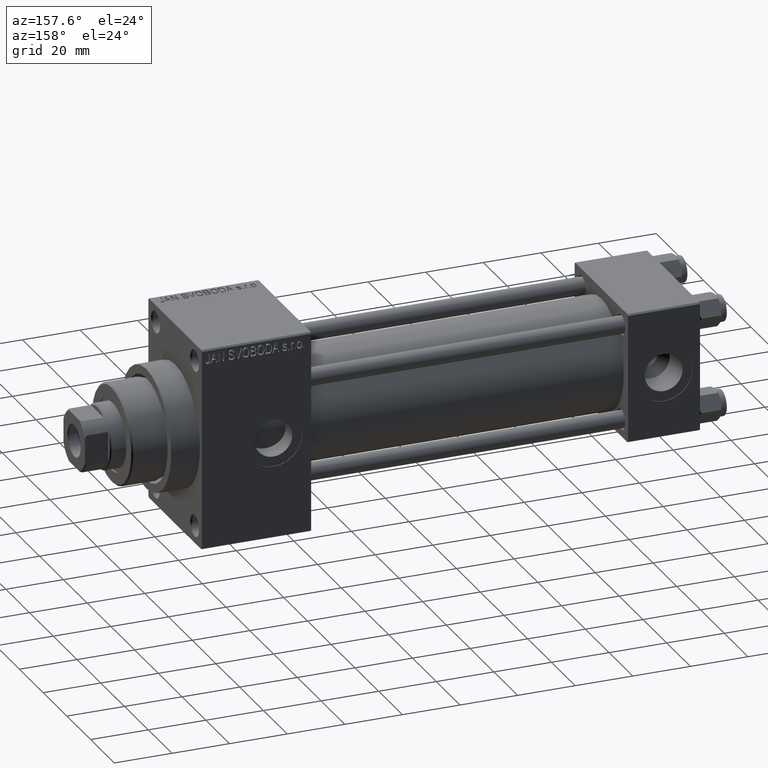
[diagram: clean part render]
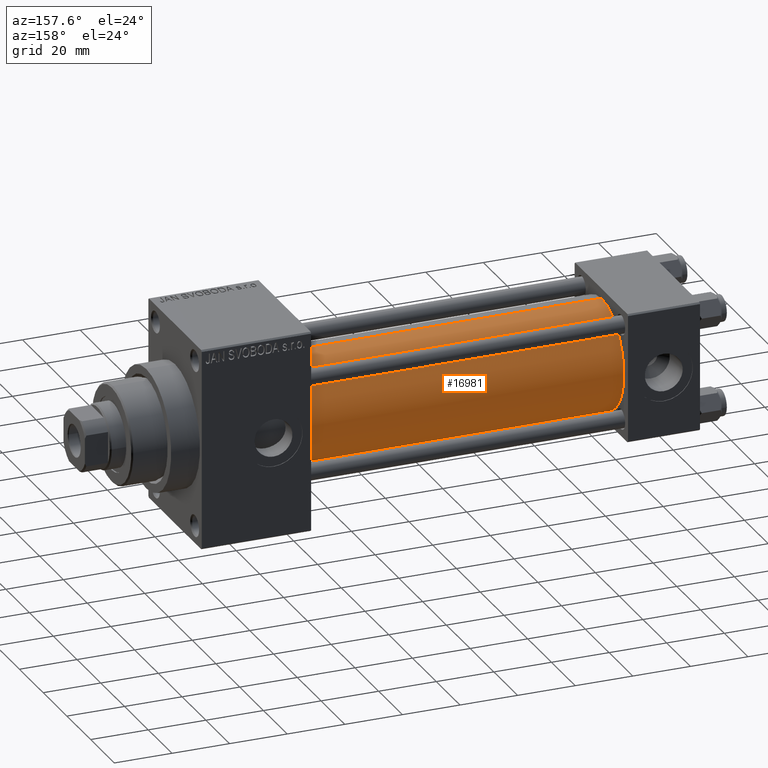
[diagram: same view with one face highlighted and labeled with its STEP entity id]
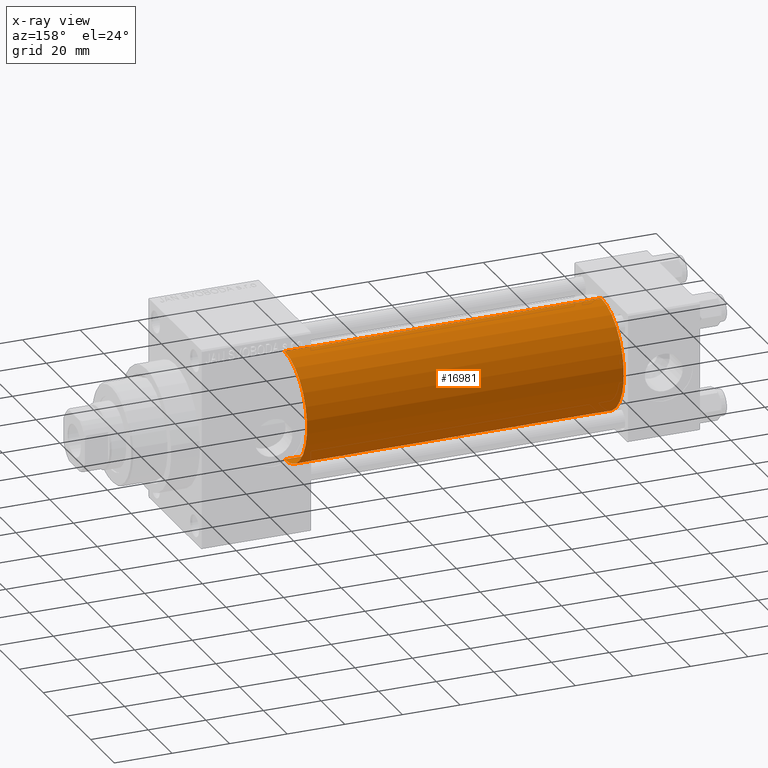
[diagram: x-ray of the same camera — body ghosted, the highlighted face saturated]
A machine part, auxiliary view. The second image highlights one B-rep face of the part: STEP entity #16981.
The next image is the same camera in x-ray: the body ghosted, the highlighted face saturated — about 0% of this face is hidden behind the body in this view.
In plain terms, the highlighted cylindrical surface (partial cylindrical patch) has radius 19 mm, axis along (-1, -0, -0).
Its self-contained STEP definition (entity closure, byte-faithful):
#436 = CARTESIAN_POINT ( 'NONE',  ( 135.0000000000000000, -2.602085213965210642E-15, 0.000000000000000000 ) ) ;
#4152 = AXIS2_PLACEMENT_3D ( 'NONE', #9627, #36430, #47367 ) ;
#4407 = DIRECTION ( 'NONE',  ( -1.000000000000000000, -0.000000000000000000, -0.000000000000000000 ) ) ;
#8010 = VECTOR ( 'NONE', #21122, 1000.000000000000000 ) ;
#9627 = CARTESIAN_POINT ( 'NONE',  ( 135.0000000000000000, -2.602085213965210642E-15, 0.000000000000000000 ) ) ;
#10916 = LINE ( 'NONE', #44193, #8010 ) ;
#11360 = ORIENTED_EDGE ( 'NONE', *, *, #48361, .F. ) ;
#13153 = DIRECTION ( 'NONE',  ( 0.000000000000000000, 0.000000000000000000, 1.000000000000000000 ) ) ;
#13289 = VERTEX_POINT ( 'NONE', #35679 ) ;
#13359 = DIRECTION ( 'NONE',  ( -1.000000000000000000, -0.000000000000000000, -0.000000000000000000 ) ) ;
#14882 = CYLINDRICAL_SURFACE ( 'NONE', #22184, 19.00000000000000000 ) ;
#16878 = CARTESIAN_POINT ( 'NONE',  ( 24.99999999999999289, -2.602085213965210642E-15, 0.000000000000000000 ) ) ;
#16981 = ADVANCED_FACE ( 'NONE', ( #45158 ), #14882, .T. ) ;
#17087 = VERTEX_POINT ( 'NONE', #30731 ) ;
#17949 = CARTESIAN_POINT ( 'NONE',  ( 135.0000000000000000, -2.752562955852396712E-16, -19.00000000000000000 ) ) ;
#20316 = CARTESIAN_POINT ( 'NONE',  ( 135.0000000000000000, -2.752562955852396712E-16, -19.00000000000000000 ) ) ;
#21122 = DIRECTION ( 'NONE',  ( -1.000000000000000000, -0.000000000000000000, -0.000000000000000000 ) ) ;
#22184 = AXIS2_PLACEMENT_3D ( 'NONE', #436, #4407, #38676 ) ;
#22498 = CIRCLE ( 'NONE', #43922, 19.00000000000000000 ) ;
#30731 = CARTESIAN_POINT ( 'NONE',  ( 24.99999999999999289, -2.602085213965210642E-15, 19.00000000000000000 ) ) ;
#32037 = EDGE_LOOP ( 'NONE', ( #11360, #39387, #48443, #39524 ) ) ;
#32714 = EDGE_CURVE ( 'NONE', #43486, #17087, #22498, .T. ) ;
#35679 = CARTESIAN_POINT ( 'NONE',  ( 135.0000000000000000, -2.602085213965210642E-15, 19.00000000000000000 ) ) ;
#35912 = CIRCLE ( 'NONE', #4152, 19.00000000000000000 ) ;
#36343 = EDGE_CURVE ( 'NONE', #40336, #43486, #43394, .T. ) ;
#36430 = DIRECTION ( 'NONE',  ( 1.000000000000000000, 0.000000000000000000, 0.000000000000000000 ) ) ;
#38558 = VECTOR ( 'NONE', #13359, 1000.000000000000000 ) ;
#38676 = DIRECTION ( 'NONE',  ( 0.000000000000000000, 0.000000000000000000, 1.000000000000000000 ) ) ;
#39387 = ORIENTED_EDGE ( 'NONE', *, *, #36343, .T. ) ;
#39524 = ORIENTED_EDGE ( 'NONE', *, *, #43618, .F. ) ;
#39988 = CARTESIAN_POINT ( 'NONE',  ( 24.99999999999999289, -2.752562955852396712E-16, -19.00000000000000000 ) ) ;
#40336 = VERTEX_POINT ( 'NONE', #17949 ) ;
#43394 = LINE ( 'NONE', #20316, #38558 ) ;
#43486 = VERTEX_POINT ( 'NONE', #39988 ) ;
#43618 = EDGE_CURVE ( 'NONE', #13289, #17087, #10916, .T. ) ;
#43922 = AXIS2_PLACEMENT_3D ( 'NONE', #16878, #47153, #13153 ) ;
#44193 = CARTESIAN_POINT ( 'NONE',  ( 135.0000000000000000, -2.602085213965210642E-15, 19.00000000000000000 ) ) ;
#45158 = FACE_OUTER_BOUND ( 'NONE', #32037, .T. ) ;
#47153 = DIRECTION ( 'NONE',  ( 1.000000000000000000, -0.000000000000000000, 0.000000000000000000 ) ) ;
#47367 = DIRECTION ( 'NONE',  ( 0.000000000000000000, 0.000000000000000000, -1.000000000000000000 ) ) ;
#48361 = EDGE_CURVE ( 'NONE', #40336, #13289, #35912, .T. ) ;
#48443 = ORIENTED_EDGE ( 'NONE', *, *, #32714, .T. ) ;